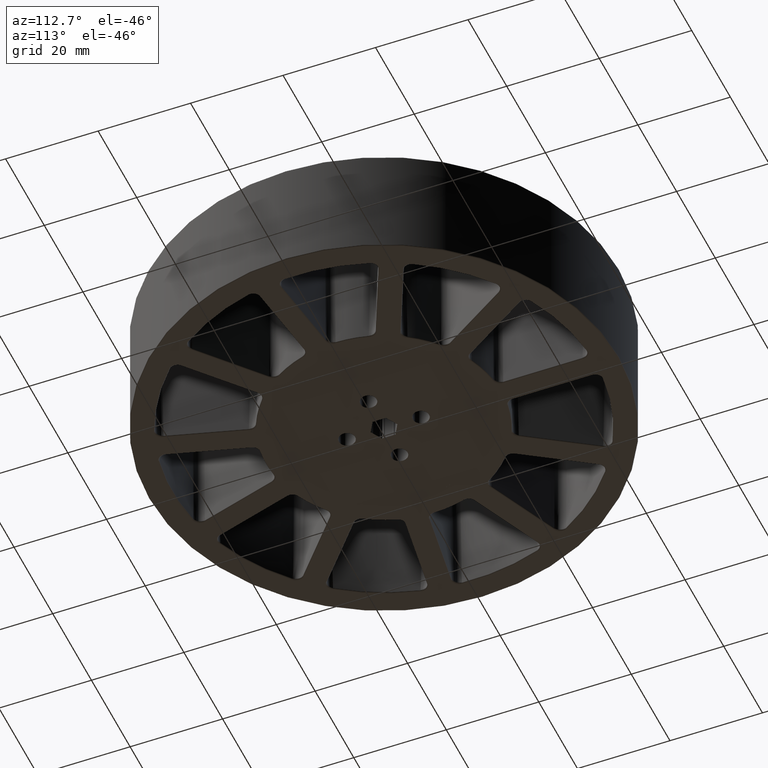
[diagram: clean part render]
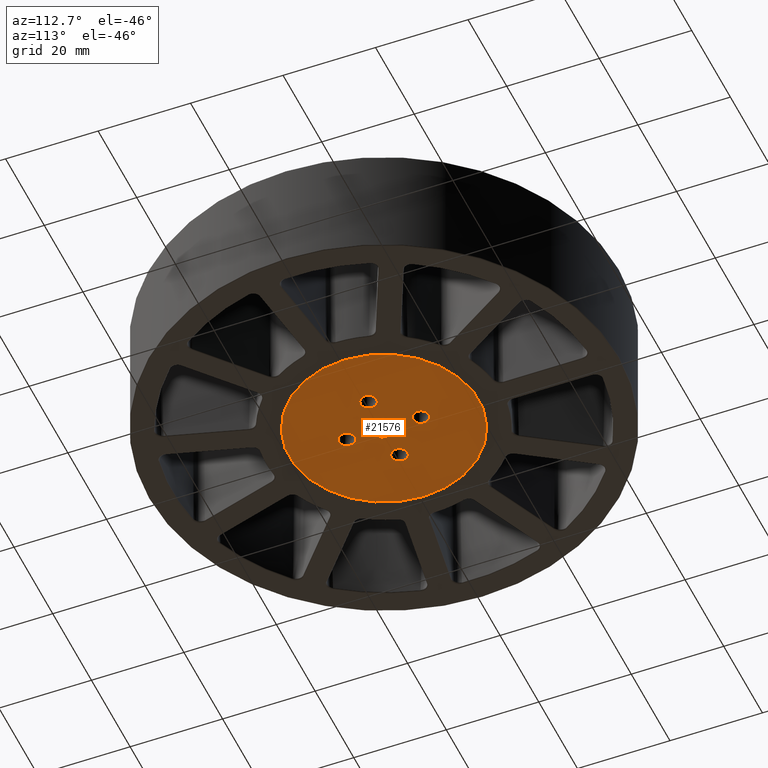
[diagram: same view with one face highlighted and labeled with its STEP entity id]
A machine part, auxiliary view. The second image highlights one B-rep face of the part: STEP entity #21576.
In plain terms, the highlighted planar face has unit normal (0, -0, -1).
Its self-contained STEP definition (entity closure, byte-faithful):
#202 = LINE ( 'NONE', #5051, #2044 ) ;
#289 = EDGE_LOOP ( 'NONE', ( #12041 ) ) ;
#687 = AXIS2_PLACEMENT_3D ( 'NONE', #1771, #10802, #19443 ) ;
#794 = ORIENTED_EDGE ( 'NONE', *, *, #1653, .T. ) ;
#822 = CARTESIAN_POINT ( 'NONE',  ( 2.349852262806235714, -1.530063509461099702, -12.70000000000000284 ) ) ;
#1018 = VERTEX_POINT ( 'NONE', #10062 ) ;
#1182 = LINE ( 'NONE', #10224, #27873 ) ;
#1314 = VERTEX_POINT ( 'NONE', #10353 ) ;
#1521 = AXIS2_PLACEMENT_3D ( 'NONE', #27562, #8264, #17045 ) ;
#1581 = EDGE_CURVE ( 'NONE', #15464, #23866, #14364, .T. ) ;
#1598 = VECTOR ( 'NONE', #22705, 1000.000000000000000 ) ;
#1636 = CARTESIAN_POINT ( 'NONE',  ( 2.500000000000001332, 1.443375672974063884, -12.70000000000000284 ) ) ;
#1653 = EDGE_CURVE ( 'NONE', #1018, #1018, #14291, .T. ) ;
#1712 = VERTEX_POINT ( 'NONE', #3291 ) ;
#1733 = CARTESIAN_POINT ( 'NONE',  ( 6.712176613025599443E-16, 7.999999999999994671, -12.70000000000000639 ) ) ;
#1771 = CARTESIAN_POINT ( 'NONE',  ( -2.226209131306549960, 1.769154377748579865, -12.70000000000001705 ) ) ;
#1821 = EDGE_CURVE ( 'NONE', #8103, #22678, #23657, .T. ) ;
#1971 = EDGE_CURVE ( 'NONE', #7646, #20755, #10142, .T. ) ;
#2024 = VERTEX_POINT ( 'NONE', #23337 ) ;
#2044 = VECTOR ( 'NONE', #5348, 1000.000000000000000 ) ;
#2107 = VERTEX_POINT ( 'NONE', #1636 ) ;
#2155 = VECTOR ( 'NONE', #4713, 1000.000000000000114 ) ;
#2189 = VERTEX_POINT ( 'NONE', #22990 ) ;
#2207 = CARTESIAN_POINT ( 'NONE',  ( 8.000000000000001776, -8.881784197001252323E-16, -12.70000000000000462 ) ) ;
#2352 = CARTESIAN_POINT ( 'NONE',  ( -2.499999999999998668, 1.443375672974065216, -12.70000000000000639 ) ) ;
#2498 = EDGE_CURVE ( 'NONE', #14049, #8103, #202, .T. ) ;
#2628 = CARTESIAN_POINT ( 'NONE',  ( -2.034512839011809238, -1.712124810674909403, -12.70000000000000639 ) ) ;
#2712 = EDGE_LOOP ( 'NONE', ( #12013 ) ) ;
#2767 = VERTEX_POINT ( 'NONE', #5653 ) ;
#2779 = CIRCLE ( 'NONE', #6596, 0.1999995999999999718 ) ;
#2902 = EDGE_CURVE ( 'NONE', #6156, #14011, #26839, .T. ) ;
#2912 = CARTESIAN_POINT ( 'NONE',  ( 0.4190280686934531595, 2.812530850722649411, -12.70000000000001350 ) ) ;
#3071 = CIRCLE ( 'NONE', #687, 0.1999996000000000274 ) ;
#3097 = DIRECTION ( 'NONE',  ( 0.8660254037844387076, -0.4999999999999999445, -0.0000000000000000000 ) ) ;
#3291 = CARTESIAN_POINT ( 'NONE',  ( 2.500000000000000888, -1.180875548375712292, -12.70000000000000284 ) ) ;
#3365 = VECTOR ( 'NONE', #11385, 1000.000000000000000 ) ;
#3516 = DIRECTION ( 'NONE',  ( 0.8660254037844387076, -0.5000000000000001110, 1.060575238724906915E-16 ) ) ;
#3547 = CIRCLE ( 'NONE', #3561, 1.750000000000000000 ) ;
#3561 = AXIS2_PLACEMENT_3D ( 'NONE', #12466, #12310, #12174 ) ;
#3609 = DIRECTION ( 'NONE',  ( 1.000000000000000000, -1.110223024625158266E-16, 0.0000000000000000000 ) ) ;
#3610 = EDGE_CURVE ( 'NONE', #14555, #14555, #3547, .T. ) ;
#3646 = DIRECTION ( 'NONE',  ( -1.224646799147353207E-16, 1.359631073446890782E-32, 1.000000000000000000 ) ) ;
#3682 = CARTESIAN_POINT ( 'NONE',  ( 2.272668223601285842, 1.574625735273218030, -12.70000000000000639 ) ) ;
#3703 = LINE ( 'NONE', #12705, #26227 ) ;
#3704 = CARTESIAN_POINT ( 'NONE',  ( -7.999999999999994671, -6.050715484207103934E-15, -12.70000000000000817 ) ) ;
#3836 = VERTEX_POINT ( 'NONE', #12496 ) ;
#3889 = VECTOR ( 'NONE', #13606, 1000.000000000000000 ) ;
#3909 = EDGE_CURVE ( 'NONE', #9451, #26583, #9749, .T. ) ;
#4087 = CARTESIAN_POINT ( 'NONE',  ( 0.0000000000000000000, 0.0000000000000000000, -12.70000000000000284 ) ) ;
#4309 = DIRECTION ( 'NONE',  ( 0.8660254037844388186, 0.4999999999999997224, 1.060575238724907161E-16 ) ) ;
#4450 = DIRECTION ( 'NONE',  ( -1.000000000000000000, 0.0000000000000000000, 0.0000000000000000000 ) ) ;
#4637 = CARTESIAN_POINT ( 'NONE',  ( 1.555301434917138827E-15, -2.886751345948127767, -12.70000000000000639 ) ) ;
#4713 = DIRECTION ( 'NONE',  ( -0.8660254037844388186, -0.4999999999999997224, 0.0000000000000000000 ) ) ;
#4784 = CARTESIAN_POINT ( 'NONE',  ( 2.500000000000000888, 0.9058773975723902749, -12.70000000000000284 ) ) ;
#5051 = CARTESIAN_POINT ( 'NONE',  ( -2.499999999999998224, 2.539999999999999591, -12.70000000000000284 ) ) ;
#5125 = DIRECTION ( 'NONE',  ( -1.224646799147353207E-16, 1.359631073446890782E-32, 1.000000000000000000 ) ) ;
#5151 = DIRECTION ( 'NONE',  ( -1.224646799147352961E-16, -1.105559255368771384E-32, 1.000000000000000000 ) ) ;
#5165 = CARTESIAN_POINT ( 'NONE',  ( 2.500000000000001332, 1.180875548375800888, -12.70000000000000284 ) ) ;
#5225 = LINE ( 'NONE', #14225, #1598 ) ;
#5272 = CARTESIAN_POINT ( 'NONE',  ( -0.4190280686934571008, 2.812530850722648523, -12.70000000000001705 ) ) ;
#5293 = FACE_OUTER_BOUND ( 'NONE', #2712, .T. ) ;
#5348 = DIRECTION ( 'NONE',  ( 3.004629197474320035E-16, 1.000000000000000000, 3.679609529311606833E-32 ) ) ;
#5551 = VERTEX_POINT ( 'NONE', #13060 ) ;
#5643 = DIRECTION ( 'NONE',  ( -1.502314598737159524E-16, -1.000000000000000000, -1.839804764655802595E-32 ) ) ;
#5653 = CARTESIAN_POINT ( 'NONE',  ( 2.500000000000000888, -0.9058773975723554139, -12.70000000000000284 ) ) ;
#5673 = CARTESIAN_POINT ( 'NONE',  ( -2.349852262806234826, -1.530063509461095927, -12.70000000000000284 ) ) ;
#5731 = VERTEX_POINT ( 'NONE', #14700 ) ;
#5759 = VECTOR ( 'NONE', #9879, 1000.000000000000000 ) ;
#6079 = EDGE_CURVE ( 'NONE', #3836, #2189, #18505, .T. ) ;
#6156 = VERTEX_POINT ( 'NONE', #13314 ) ;
#6260 = ORIENTED_EDGE ( 'NONE', *, *, #23536, .F. ) ;
#6285 = LINE ( 'NONE', #15202, #21316 ) ;
#6318 = LINE ( 'NONE', #15237, #17419 ) ;
#6335 = VERTEX_POINT ( 'NONE', #12729 ) ;
#6381 = CARTESIAN_POINT ( 'NONE',  ( 2.645237200000012834, -1.043376472974033797, -12.70000000000001705 ) ) ;
#6596 = AXIS2_PLACEMENT_3D ( 'NONE', #6381, #15297, #23750 ) ;
#6672 = CARTESIAN_POINT ( 'NONE',  ( -0.2273317763987214024, 2.755501283648970290, -12.70000000000000639 ) ) ;
#7134 = CARTESIAN_POINT ( 'NONE',  ( 2.500000000000001332, 2.539999999999997371, -12.70000000000000284 ) ) ;
#7483 = CARTESIAN_POINT ( 'NONE',  ( -0.4654871609881862105, -2.618002208247282692, -12.70000000000000284 ) ) ;
#7551 = FACE_BOUND ( 'NONE', #17351, .T. ) ;
#7646 = VERTEX_POINT ( 'NONE', #27869 ) ;
#7649 = EDGE_LOOP ( 'NONE', ( #11975 ) ) ;
#7661 = CIRCLE ( 'NONE', #20008, 20.51150622745479168 ) ;
#8103 = VERTEX_POINT ( 'NONE', #14929 ) ;
#8161 = VECTOR ( 'NONE', #16004, 1000.000000000000000 ) ;
#8198 = CARTESIAN_POINT ( 'NONE',  ( 2.272668223601317816, -1.574625735273201821, -12.70000000000000284 ) ) ;
#8264 = DIRECTION ( 'NONE',  ( -1.224646799147353207E-16, 1.359631073446890782E-32, 1.000000000000000000 ) ) ;
#8688 = CIRCLE ( 'NONE', #23112, 1.749999999999999778 ) ;
#8885 = EDGE_CURVE ( 'NONE', #23866, #2767, #16719, .T. ) ;
#9020 = VECTOR ( 'NONE', #3097, 999.9999999999998863 ) ;
#9451 = VERTEX_POINT ( 'NONE', #8198 ) ;
#9749 = CIRCLE ( 'NONE', #9798, 0.1999995999999999441 ) ;
#9798 = AXIS2_PLACEMENT_3D ( 'NONE', #11895, #11757, #11625 ) ;
#9879 = DIRECTION ( 'NONE',  ( -0.8660254037844388186, -0.4999999999999996114, -1.060575238724907161E-16 ) ) ;
#9907 = EDGE_CURVE ( 'NONE', #22678, #23859, #3703, .T. ) ;
#9958 = EDGE_CURVE ( 'NONE', #11679, #27719, #22276, .T. ) ;
#10062 = CARTESIAN_POINT ( 'NONE',  ( -6.249999999999996447, -6.245004513516506329E-15, -12.70000000000000817 ) ) ;
#10082 = CARTESIAN_POINT ( 'NONE',  ( 0.0000000000000000000, 2.539999999999998259, -12.70000000000000284 ) ) ;
#10141 = AXIS2_PLACEMENT_3D ( 'NONE', #13123, #12800, #12393 ) ;
#10142 = CIRCLE ( 'NONE', #10141, 0.1999995999999999996 ) ;
#10224 = CARTESIAN_POINT ( 'NONE',  ( 0.1501477371937637029, 2.800063509461096167, -12.70000000000000284 ) ) ;
#10295 = CARTESIAN_POINT ( 'NONE',  ( -0.1501477371937630645, 2.800063509461095279, -12.70000000000000284 ) ) ;
#10310 = EDGE_CURVE ( 'NONE', #16430, #2189, #24195, .T. ) ;
#10353 = CARTESIAN_POINT ( 'NONE',  ( -20.51150622745479168, 2.277234648346258897E-15, -12.70000000000000462 ) ) ;
#10452 = EDGE_CURVE ( 'NONE', #14631, #6156, #15446, .T. ) ;
#10498 = ORIENTED_EDGE ( 'NONE', *, *, #8885, .F. ) ;
#10577 = ORIENTED_EDGE ( 'NONE', *, *, #14002, .F. ) ;
#10642 = ORIENTED_EDGE ( 'NONE', *, *, #20894, .T. ) ;
#10691 = VERTEX_POINT ( 'NONE', #3682 ) ;
#10729 = ORIENTED_EDGE ( 'NONE', *, *, #16008, .F. ) ;
#10771 = DIRECTION ( 'NONE',  ( -1.224646799147353207E-16, 1.359631073446890782E-32, 1.000000000000000000 ) ) ;
#10783 = ORIENTED_EDGE ( 'NONE', *, *, #26090, .F. ) ;
#10802 = DIRECTION ( 'NONE',  ( -1.224646799147353207E-16, 1.359631073446890782E-32, 1.000000000000000000 ) ) ;
#10846 = EDGE_CURVE ( 'NONE', #5731, #5731, #16605, .T. ) ;
#10859 = ORIENTED_EDGE ( 'NONE', *, *, #21901, .F. ) ;
#10922 = ORIENTED_EDGE ( 'NONE', *, *, #17622, .F. ) ;
#10952 = ORIENTED_EDGE ( 'NONE', *, *, #13116, .F. ) ;
#10958 = ORIENTED_EDGE ( 'NONE', *, *, #2902, .F. ) ;
#11034 = ORIENTED_EDGE ( 'NONE', *, *, #19296, .T. ) ;
#11037 = ORIENTED_EDGE ( 'NONE', *, *, #19285, .F. ) ;
#11068 = ORIENTED_EDGE ( 'NONE', *, *, #10452, .F. ) ;
#11091 = CARTESIAN_POINT ( 'NONE',  ( 2.034512839011824781, -1.712124810674904296, -12.70000000000000284 ) ) ;
#11102 = ORIENTED_EDGE ( 'NONE', *, *, #12753, .F. ) ;
#11173 = ORIENTED_EDGE ( 'NONE', *, *, #13047, .T. ) ;
#11237 = DIRECTION ( 'NONE',  ( -1.224646799147353207E-16, 1.359631073446890782E-32, 1.000000000000000000 ) ) ;
#11238 = ORIENTED_EDGE ( 'NONE', *, *, #1821, .F. ) ;
#11313 = ORIENTED_EDGE ( 'NONE', *, *, #9907, .F. ) ;
#11348 = ORIENTED_EDGE ( 'NONE', *, *, #16077, .T. ) ;
#11352 = ORIENTED_EDGE ( 'NONE', *, *, #2498, .F. ) ;
#11379 = ORIENTED_EDGE ( 'NONE', *, *, #22441, .F. ) ;
#11383 = ORIENTED_EDGE ( 'NONE', *, *, #9958, .F. ) ;
#11385 = DIRECTION ( 'NONE',  ( -3.004629197474319542E-16, -1.000000000000000000, 0.0000000000000000000 ) ) ;
#11459 = ORIENTED_EDGE ( 'NONE', *, *, #16603, .F. ) ;
#11520 = ORIENTED_EDGE ( 'NONE', *, *, #1971, .F. ) ;
#11610 = ORIENTED_EDGE ( 'NONE', *, *, #6079, .F. ) ;
#11625 = DIRECTION ( 'NONE',  ( -0.4999999999999924505, -0.8660254037844430375, 0.0000000000000000000 ) ) ;
#11673 = ORIENTED_EDGE ( 'NONE', *, *, #10310, .T. ) ;
#11679 = VERTEX_POINT ( 'NONE', #2628 ) ;
#11680 = CARTESIAN_POINT ( 'NONE',  ( -2.499999999999999556, -1.443375672974063217, -12.70000000000000284 ) ) ;
#11757 = DIRECTION ( 'NONE',  ( -1.224646799147353454E-16, 1.359631073446891055E-32, 1.000000000000000000 ) ) ;
#11800 = ORIENTED_EDGE ( 'NONE', *, *, #3909, .F. ) ;
#11846 = ORIENTED_EDGE ( 'NONE', *, *, #12158, .F. ) ;
#11876 = ORIENTED_EDGE ( 'NONE', *, *, #22500, .T. ) ;
#11879 = ORIENTED_EDGE ( 'NONE', *, *, #18670, .F. ) ;
#11895 = CARTESIAN_POINT ( 'NONE',  ( 2.226209131306565059, -1.769154377748564100, -12.70000000000001705 ) ) ;
#11939 = DIRECTION ( 'NONE',  ( -1.224646799147353207E-16, 1.359631073446890782E-32, 1.000000000000000000 ) ) ;
#11975 = ORIENTED_EDGE ( 'NONE', *, *, #3610, .T. ) ;
#12013 = ORIENTED_EDGE ( 'NONE', *, *, #17997, .F. ) ;
#12041 = ORIENTED_EDGE ( 'NONE', *, *, #10846, .T. ) ;
#12158 = EDGE_CURVE ( 'NONE', #26583, #3836, #20654, .T. ) ;
#12174 = DIRECTION ( 'NONE',  ( 1.000000000000000000, 0.0000000000000000000, 0.0000000000000000000 ) ) ;
#12310 = DIRECTION ( 'NONE',  ( -1.224646799147353207E-16, 1.359631073446890782E-32, 1.000000000000000000 ) ) ;
#12393 = DIRECTION ( 'NONE',  ( -1.000000000000000000, 0.0000000000000000000, 0.0000000000000000000 ) ) ;
#12466 = CARTESIAN_POINT ( 'NONE',  ( 2.759730276893979627E-15, -8.000000000000000000, -12.70000000000000639 ) ) ;
#12496 = CARTESIAN_POINT ( 'NONE',  ( 0.4654871609882029748, -2.618002208247275142, -12.70000000000000639 ) ) ;
#12705 = CARTESIAN_POINT ( 'NONE',  ( -2.499999999999998224, 2.539999999999999591, -12.70000000000000284 ) ) ;
#12729 = CARTESIAN_POINT ( 'NONE',  ( 2.034512839011812346, 1.712124810674909625, -12.70000000000000639 ) ) ;
#12753 = EDGE_CURVE ( 'NONE', #23859, #12994, #26974, .T. ) ;
#12800 = DIRECTION ( 'NONE',  ( -1.224646799147353207E-16, 1.359631073446890782E-32, 1.000000000000000000 ) ) ;
#12975 = AXIS2_PLACEMENT_3D ( 'NONE', #26923, #27477, #27573 ) ;
#12994 = VERTEX_POINT ( 'NONE', #17780 ) ;
#13047 = EDGE_CURVE ( 'NONE', #2024, #12994, #22088, .T. ) ;
#13060 = CARTESIAN_POINT ( 'NONE',  ( 2.500000000000000888, -1.443375672974066326, -12.70000000000000284 ) ) ;
#13068 = DIRECTION ( 'NONE',  ( -1.224646799147353207E-16, 1.359631073446890782E-32, 1.000000000000000000 ) ) ;
#13116 = EDGE_CURVE ( 'NONE', #22870, #13425, #26829, .T. ) ;
#13123 = CARTESIAN_POINT ( 'NONE',  ( -0.4190280686934500509, -2.812530850722649411, -12.70000000000001705 ) ) ;
#13268 = VECTOR ( 'NONE', #14644, 999.9999999999998863 ) ;
#13314 = CARTESIAN_POINT ( 'NONE',  ( -0.4654871609881912065, 2.618002208247280915, -12.70000000000000639 ) ) ;
#13344 = EDGE_LOOP ( 'NONE', ( #11876 ) ) ;
#13425 = VERTEX_POINT ( 'NONE', #14629 ) ;
#13606 = DIRECTION ( 'NONE',  ( 0.8660254037844389297, 0.4999999999999996114, 0.0000000000000000000 ) ) ;
#14002 = EDGE_CURVE ( 'NONE', #2767, #1712, #2779, .T. ) ;
#14011 = VERTEX_POINT ( 'NONE', #6672 ) ;
#14049 = VERTEX_POINT ( 'NONE', #11680 ) ;
#14149 = DIRECTION ( 'NONE',  ( -0.5000000000000034417, 0.8660254037844367092, 0.0000000000000000000 ) ) ;
#14219 = DIRECTION ( 'NONE',  ( 0.5000000000000097700, -0.8660254037844330455, 0.0000000000000000000 ) ) ;
#14225 = CARTESIAN_POINT ( 'NONE',  ( 2.500000000000001332, 2.539999999999997371, -12.70000000000000284 ) ) ;
#14250 = DIRECTION ( 'NONE',  ( -1.224646799147353207E-16, 1.359631073446890782E-32, 1.000000000000000000 ) ) ;
#14273 = AXIS2_PLACEMENT_3D ( 'NONE', #3704, #3646, #3609 ) ;
#14280 = PLANE ( 'NONE',  #25269 ) ;
#14291 = CIRCLE ( 'NONE', #14273, 1.749999999999998890 ) ;
#14312 = LINE ( 'NONE', #22796, #9020 ) ;
#14364 = CIRCLE ( 'NONE', #22732, 0.1999995999999999718 ) ;
#14400 = CARTESIAN_POINT ( 'NONE',  ( 2.645237199999988409, 1.043376472974095526, -12.70000000000001705 ) ) ;
#14555 = VERTEX_POINT ( 'NONE', #23025 ) ;
#14629 = CARTESIAN_POINT ( 'NONE',  ( 0.4654871609881904293, 2.618002208247282692, -12.70000000000000284 ) ) ;
#14631 = VERTEX_POINT ( 'NONE', #21233 ) ;
#14644 = DIRECTION ( 'NONE',  ( -0.8660254037844387076, 0.4999999999999999445, -1.060575238724907038E-16 ) ) ;
#14700 = CARTESIAN_POINT ( 'NONE',  ( 9.750000000000001776, -1.082467449009527627E-15, -12.70000000000000462 ) ) ;
#14708 = LINE ( 'NONE', #23172, #24003 ) ;
#14736 = VECTOR ( 'NONE', #23564, 999.9999999999998863 ) ;
#14845 = VERTEX_POINT ( 'NONE', #23312 ) ;
#14929 = CARTESIAN_POINT ( 'NONE',  ( -2.499999999999999556, -1.180875548375774686, -12.70000000000000284 ) ) ;
#15073 = AXIS2_PLACEMENT_3D ( 'NONE', #24713, #5151, #14149 ) ;
#15102 = CARTESIAN_POINT ( 'NONE',  ( -2.349852262806234826, -1.530063509461095927, -12.70000000000000284 ) ) ;
#15202 = CARTESIAN_POINT ( 'NONE',  ( 2.500000000000001332, 1.443375672974063884, -12.70000000000000639 ) ) ;
#15237 = CARTESIAN_POINT ( 'NONE',  ( 2.349852262806235714, -1.530063509461099702, -12.70000000000000284 ) ) ;
#15297 = DIRECTION ( 'NONE',  ( -1.224646799147353207E-16, 1.359631073446890782E-32, 1.000000000000000000 ) ) ;
#15353 = AXIS2_PLACEMENT_3D ( 'NONE', #5272, #5125, #22354 ) ;
#15446 = LINE ( 'NONE', #23888, #26737 ) ;
#15452 = CARTESIAN_POINT ( 'NONE',  ( -2.272668223601292059, 1.574625735273213811, -12.70000000000000284 ) ) ;
#15464 = VERTEX_POINT ( 'NONE', #5165 ) ;
#15583 = CARTESIAN_POINT ( 'NONE',  ( -2.226209131306545963, -1.769154377748584750, -12.70000000000001705 ) ) ;
#15831 = LINE ( 'NONE', #24271, #2155 ) ;
#15872 = CARTESIAN_POINT ( 'NONE',  ( -1.544988095791843818E-15, 2.886751345948129988, -12.70000000000000284 ) ) ;
#16004 = DIRECTION ( 'NONE',  ( -1.502314598737159524E-16, -1.000000000000000000, -1.839804764655802595E-32 ) ) ;
#16008 = EDGE_CURVE ( 'NONE', #2107, #15464, #20194, .T. ) ;
#16077 = EDGE_CURVE ( 'NONE', #14049, #27719, #14312, .T. ) ;
#16411 = FACE_BOUND ( 'NONE', #7649, .T. ) ;
#16430 = VERTEX_POINT ( 'NONE', #21544 ) ;
#16603 = EDGE_CURVE ( 'NONE', #16430, #7646, #25192, .T. ) ;
#16605 = CIRCLE ( 'NONE', #18854, 1.749999999999999778 ) ;
#16634 = EDGE_CURVE ( 'NONE', #2024, #21202, #23104, .T. ) ;
#16719 = LINE ( 'NONE', #25168, #21405 ) ;
#16882 = VECTOR ( 'NONE', #18977, 1000.000000000000000 ) ;
#17045 = DIRECTION ( 'NONE',  ( 1.000000000000000000, 0.0000000000000000000, 0.0000000000000000000 ) ) ;
#17278 = DIRECTION ( 'NONE',  ( -0.4999999999999916178, -0.8660254037844434816, 0.0000000000000000000 ) ) ;
#17351 = EDGE_LOOP ( 'NONE', ( #794 ) ) ;
#17415 = DIRECTION ( 'NONE',  ( -1.224646799147353454E-16, 1.359631073446891055E-32, 1.000000000000000000 ) ) ;
#17419 = VECTOR ( 'NONE', #23695, 1000.000000000000000 ) ;
#17563 = CARTESIAN_POINT ( 'NONE',  ( 0.4190280686934797494, -2.812530850722645415, -12.70000000000001705 ) ) ;
#17622 = EDGE_CURVE ( 'NONE', #27955, #22870, #1182, .T. ) ;
#17780 = CARTESIAN_POINT ( 'NONE',  ( -2.499999999999998668, 1.180875548375739381, -12.70000000000000639 ) ) ;
#17997 = EDGE_CURVE ( 'NONE', #1314, #1314, #7661, .T. ) ;
#18106 = CARTESIAN_POINT ( 'NONE',  ( -2.272668223601282733, -1.574625735273218030, -12.70000000000000639 ) ) ;
#18491 = FACE_BOUND ( 'NONE', #22578, .T. ) ;
#18505 = CIRCLE ( 'NONE', #18527, 0.1999996000000000551 ) ;
#18527 = AXIS2_PLACEMENT_3D ( 'NONE', #17563, #17415, #17278 ) ;
#18670 = EDGE_CURVE ( 'NONE', #5551, #9451, #6318, .T. ) ;
#18766 = DIRECTION ( 'NONE',  ( 1.224646799147353207E-16, -1.359631073446890782E-32, -1.000000000000000000 ) ) ;
#18854 = AXIS2_PLACEMENT_3D ( 'NONE', #2207, #11237, #19869 ) ;
#18907 = DIRECTION ( 'NONE',  ( 0.8660254037844387076, -0.5000000000000001110, 1.060575238724906915E-16 ) ) ;
#18977 = DIRECTION ( 'NONE',  ( 0.8660254037844388186, 0.4999999999999997224, 1.060575238724907161E-16 ) ) ;
#19285 = EDGE_CURVE ( 'NONE', #21202, #14631, #3071, .T. ) ;
#19296 = EDGE_CURVE ( 'NONE', #27955, #14011, #15831, .T. ) ;
#19408 = DIRECTION ( 'NONE',  ( 1.000000000000000000, 0.0000000000000000000, 0.0000000000000000000 ) ) ;
#19443 = DIRECTION ( 'NONE',  ( 0.4999999999999987232, 0.8660254037844392627, 0.0000000000000000000 ) ) ;
#19869 = DIRECTION ( 'NONE',  ( 1.000000000000000000, -1.110223024625156540E-16, 0.0000000000000000000 ) ) ;
#20008 = AXIS2_PLACEMENT_3D ( 'NONE', #4087, #13068, #21633 ) ;
#20194 = LINE ( 'NONE', #7134, #8161 ) ;
#20556 = DIRECTION ( 'NONE',  ( 1.000000000000000000, 0.0000000000000000000, 0.0000000000000000000 ) ) ;
#20654 = LINE ( 'NONE', #822, #5759 ) ;
#20755 = VERTEX_POINT ( 'NONE', #7483 ) ;
#20894 = EDGE_CURVE ( 'NONE', #2107, #10691, #6285, .T. ) ;
#21202 = VERTEX_POINT ( 'NONE', #15452 ) ;
#21233 = CARTESIAN_POINT ( 'NONE',  ( -2.034512839011811902, 1.712124810674909181, -12.70000000000000284 ) ) ;
#21278 = DIRECTION ( 'NONE',  ( 3.004629197474320035E-16, 1.000000000000000000, 3.679609529311606833E-32 ) ) ;
#21316 = VECTOR ( 'NONE', #23669, 1000.000000000000000 ) ;
#21405 = VECTOR ( 'NONE', #5643, 1000.000000000000000 ) ;
#21482 = CARTESIAN_POINT ( 'NONE',  ( 0.2273317763987162399, 2.755501283648974731, -12.70000000000000284 ) ) ;
#21544 = CARTESIAN_POINT ( 'NONE',  ( 1.555301434917138827E-15, -2.886751345948127767, -12.70000000000000639 ) ) ;
#21576 = ADVANCED_FACE ( 'NONE', ( #18491, #26912, #7551, #16411, #24848, #5293 ), #14280, .T. ) ;
#21633 = DIRECTION ( 'NONE',  ( -1.000000000000000000, 1.110223024625156294E-16, -8.457318817741760526E-17 ) ) ;
#21901 = EDGE_CURVE ( 'NONE', #6335, #10691, #27084, .T. ) ;
#22088 = LINE ( 'NONE', #2352, #3365 ) ;
#22258 = AXIS2_PLACEMENT_3D ( 'NONE', #15583, #24015, #4450 ) ;
#22276 = CIRCLE ( 'NONE', #22258, 0.1999995999999999441 ) ;
#22354 = DIRECTION ( 'NONE',  ( 0.4999999999999981681, 0.8660254037844398178, 0.0000000000000000000 ) ) ;
#22441 = EDGE_CURVE ( 'NONE', #20755, #11679, #27705, .T. ) ;
#22500 = EDGE_CURVE ( 'NONE', #14845, #14845, #8688, .T. ) ;
#22578 = EDGE_LOOP ( 'NONE', ( #6260, #10577, #10498, #23238, #10729, #10642, #10859, #10783, #10952, #10922, #11034, #10958, #11068, #11037, #23543, #11173, #11102, #11313, #11238, #11352, #11348, #11383, #11379, #11520, #11459, #11673, #11610, #11846, #11800, #11879 ) ) ;
#22678 = VERTEX_POINT ( 'NONE', #22704 ) ;
#22704 = CARTESIAN_POINT ( 'NONE',  ( -2.499999999999999112, -0.9058773975723795058, -12.70000000000000284 ) ) ;
#22705 = DIRECTION ( 'NONE',  ( -1.502314598737159524E-16, -1.000000000000000000, -1.839804764655802595E-32 ) ) ;
#22732 = AXIS2_PLACEMENT_3D ( 'NONE', #14400, #14250, #14219 ) ;
#22796 = CARTESIAN_POINT ( 'NONE',  ( -2.499999999999999556, -1.443375672974062995, -12.70000000000000639 ) ) ;
#22870 = VERTEX_POINT ( 'NONE', #21482 ) ;
#22990 = CARTESIAN_POINT ( 'NONE',  ( 0.2273317763987472429, -2.755501283648956523, -12.70000000000000639 ) ) ;
#23025 = CARTESIAN_POINT ( 'NONE',  ( 1.750000000000002887, -8.000000000000000000, -12.70000000000000639 ) ) ;
#23104 = LINE ( 'NONE', #10295, #16882 ) ;
#23112 = AXIS2_PLACEMENT_3D ( 'NONE', #1733, #10771, #19408 ) ;
#23172 = CARTESIAN_POINT ( 'NONE',  ( 0.1501477371937637029, 2.800063509461096167, -12.70000000000000284 ) ) ;
#23238 = ORIENTED_EDGE ( 'NONE', *, *, #1581, .F. ) ;
#23312 = CARTESIAN_POINT ( 'NONE',  ( 1.750000000000000444, 7.999999999999994671, -12.70000000000000639 ) ) ;
#23337 = CARTESIAN_POINT ( 'NONE',  ( -2.500000000000001332, 1.443375672974063439, -12.70000000000000284 ) ) ;
#23536 = EDGE_CURVE ( 'NONE', #1712, #5551, #5225, .T. ) ;
#23543 = ORIENTED_EDGE ( 'NONE', *, *, #16634, .F. ) ;
#23564 = DIRECTION ( 'NONE',  ( -0.8660254037844387076, 0.4999999999999999445, -1.060575238724907038E-16 ) ) ;
#23657 = CIRCLE ( 'NONE', #12975, 0.1999995999999999718 ) ;
#23669 = DIRECTION ( 'NONE',  ( -0.8660254037844385966, 0.5000000000000001110, 0.0000000000000000000 ) ) ;
#23695 = DIRECTION ( 'NONE',  ( -0.8660254037844388186, -0.4999999999999996114, -1.060575238724907161E-16 ) ) ;
#23750 = DIRECTION ( 'NONE',  ( 0.5000000000000097700, -0.8660254037844330455, 0.0000000000000000000 ) ) ;
#23859 = VERTEX_POINT ( 'NONE', #24334 ) ;
#23866 = VERTEX_POINT ( 'NONE', #4784 ) ;
#23888 = CARTESIAN_POINT ( 'NONE',  ( -0.1501477371937630645, 2.800063509461095279, -12.70000000000000284 ) ) ;
#24003 = VECTOR ( 'NONE', #3516, 999.9999999999998863 ) ;
#24015 = DIRECTION ( 'NONE',  ( -1.224646799147353207E-16, 1.359631073446890782E-32, 1.000000000000000000 ) ) ;
#24195 = LINE ( 'NONE', #4637, #3889 ) ;
#24271 = CARTESIAN_POINT ( 'NONE',  ( 1.555301434917139419E-15, 2.886751345948128655, -12.70000000000000639 ) ) ;
#24334 = CARTESIAN_POINT ( 'NONE',  ( -2.499999999999998668, 0.9058773975723658500, -12.70000000000000639 ) ) ;
#24713 = CARTESIAN_POINT ( 'NONE',  ( -2.645237200000003064, 1.043376472974052671, -12.70000000000001705 ) ) ;
#24848 = FACE_BOUND ( 'NONE', #289, .T. ) ;
#25168 = CARTESIAN_POINT ( 'NONE',  ( 2.500000000000001332, 2.539999999999997371, -12.70000000000000284 ) ) ;
#25192 = LINE ( 'NONE', #5673, #13268 ) ;
#25269 = AXIS2_PLACEMENT_3D ( 'NONE', #10082, #18766, #27197 ) ;
#26090 = EDGE_CURVE ( 'NONE', #13425, #6335, #14708, .T. ) ;
#26227 = VECTOR ( 'NONE', #21278, 1000.000000000000000 ) ;
#26583 = VERTEX_POINT ( 'NONE', #11091 ) ;
#26737 = VECTOR ( 'NONE', #4309, 1000.000000000000000 ) ;
#26768 = AXIS2_PLACEMENT_3D ( 'NONE', #2912, #11939, #20556 ) ;
#26829 = CIRCLE ( 'NONE', #26768, 0.1999995999999999441 ) ;
#26839 = CIRCLE ( 'NONE', #15353, 0.1999995999999999163 ) ;
#26912 = FACE_BOUND ( 'NONE', #13344, .T. ) ;
#26923 = CARTESIAN_POINT ( 'NONE',  ( -2.645237199999993294, -1.043376472974077096, -12.70000000000001705 ) ) ;
#26974 = CIRCLE ( 'NONE', #15073, 0.1999995999999998886 ) ;
#27084 = CIRCLE ( 'NONE', #1521, 0.1999995999999999441 ) ;
#27197 = DIRECTION ( 'NONE',  ( -1.000000000000000000, 1.110223024625156294E-16, -1.224646799147353207E-16 ) ) ;
#27477 = DIRECTION ( 'NONE',  ( -1.224646799147352961E-16, -1.105559255368771384E-32, 1.000000000000000000 ) ) ;
#27562 = CARTESIAN_POINT ( 'NONE',  ( 2.226209131306548628, 1.769154377748584750, -12.70000000000001350 ) ) ;
#27573 = DIRECTION ( 'NONE',  ( -0.5000000000000032196, 0.8660254037844369313, 0.0000000000000000000 ) ) ;
#27705 = LINE ( 'NONE', #15102, #14736 ) ;
#27719 = VERTEX_POINT ( 'NONE', #18106 ) ;
#27869 = CARTESIAN_POINT ( 'NONE',  ( -0.2273317763987129925, -2.755501283648973843, -12.70000000000000284 ) ) ;
#27873 = VECTOR ( 'NONE', #18907, 999.9999999999998863 ) ;
#27955 = VERTEX_POINT ( 'NONE', #15872 ) ;